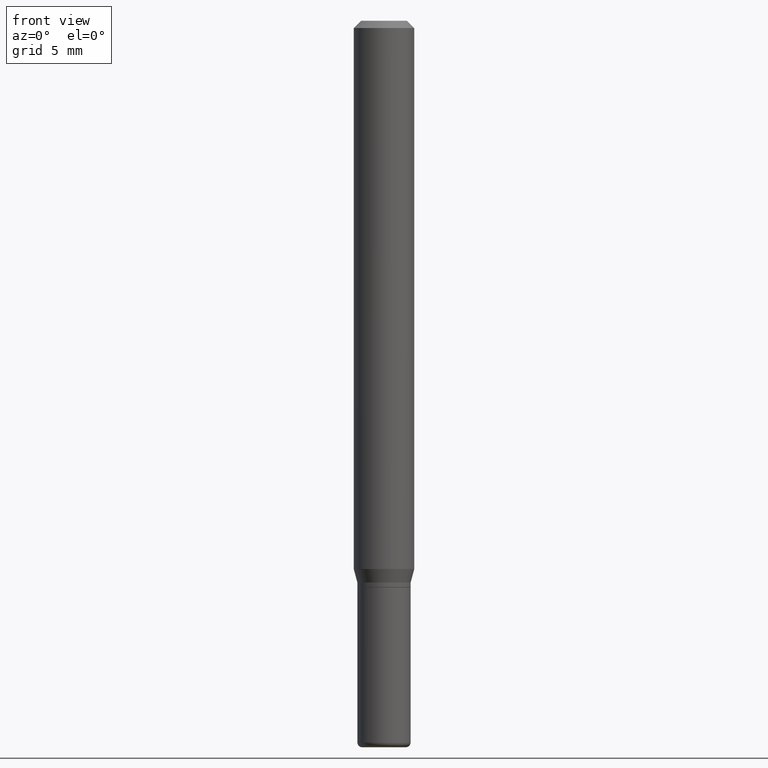
[diagram: clean part render]
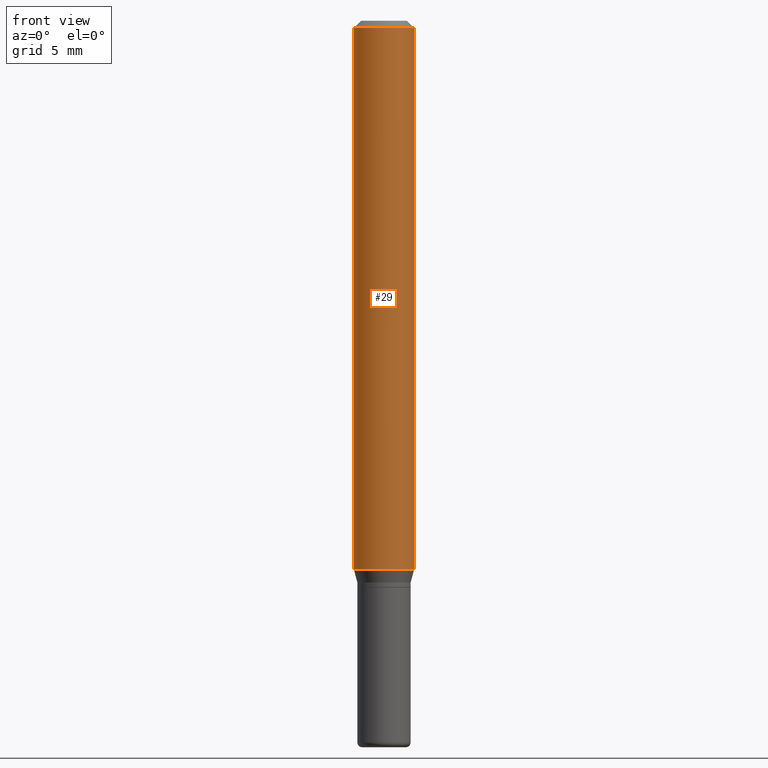
[diagram: same view with one face highlighted and labeled with its STEP entity id]
A machine part, front view. The second image highlights one B-rep face of the part: STEP entity #29.
In plain terms, the highlighted cylindrical surface (edge-blend (fillet) strip) has radius 1.5875 mm, axis along (-0, 0, 1).
Its self-contained STEP definition (entity closure, byte-faithful):
#2 = DIRECTION ( 'NONE',  ( -2.445468806185136877E-29, 3.491481338843145188E-15, 1.000000000000000000 ) ) ;
#26 = DIRECTION ( 'NONE',  ( -2.445468806185136597E-29, 3.491481338843145583E-15, 1.000000000000000000 ) ) ;
#29 = ADVANCED_FACE ( 'NONE', ( #182 ), #86, .T. ) ;
#36 = CARTESIAN_POINT ( 'NONE',  ( -0.06250000000000000000, -3.508301250081177341E-15, -1.132009618943233376 ) ) ;
#46 = EDGE_CURVE ( 'NONE', #402, #87, #483, .T. ) ;
#73 = EDGE_CURVE ( 'NONE', #396, #226, #132, .T. ) ;
#86 = CYLINDRICAL_SURFACE ( 'NONE', #110, 0.06250000000000000000 ) ;
#87 = VERTEX_POINT ( 'NONE', #142 ) ;
#110 = AXIS2_PLACEMENT_3D ( 'NONE', #397, #219, #393 ) ;
#125 = CARTESIAN_POINT ( 'NONE',  ( 0.06250000000000000000, -4.388825627286631627E-15, -1.132009618943233376 ) ) ;
#130 = ORIENTED_EDGE ( 'NONE', *, *, #46, .F. ) ;
#132 = LINE ( 'NONE', #213, #471 ) ;
#133 = EDGE_CURVE ( 'NONE', #87, #226, #238, .T. ) ;
#134 = EDGE_LOOP ( 'NONE', ( #130, #301, #216, #336 ) ) ;
#142 = CARTESIAN_POINT ( 'NONE',  ( -0.06250000000000000000, -1.558292130156879916E-15, -0.01499999999999970281 ) ) ;
#182 = FACE_OUTER_BOUND ( 'NONE', #134, .T. ) ;
#190 = CIRCLE ( 'NONE', #370, 0.06250000000000000000 ) ;
#191 = DIRECTION ( 'NONE',  ( 1.000000000000000000, -6.982962677686262766E-15, 0.000000000000000000 ) ) ;
#193 = DIRECTION ( 'NONE',  ( 1.000000000000000000, -6.982962677686266711E-15, 0.000000000000000000 ) ) ;
#213 = CARTESIAN_POINT ( 'NONE',  ( 0.06250000000000000000, -4.364351673553916694E-16, 3.047610484872459871E-30 ) ) ;
#216 = ORIENTED_EDGE ( 'NONE', *, *, #73, .T. ) ;
#219 = DIRECTION ( 'NONE',  ( -2.445468806185136597E-29, 3.491481338843145583E-15, 1.000000000000000000 ) ) ;
#226 = VERTEX_POINT ( 'NONE', #344 ) ;
#227 = EDGE_CURVE ( 'NONE', #402, #396, #190, .T. ) ;
#238 = CIRCLE ( 'NONE', #252, 0.06250000000000000000 ) ;
#250 = CARTESIAN_POINT ( 'NONE',  ( -0.06250000000000000000, 4.440892098500626162E-16, -3.074334431409316114E-30 ) ) ;
#252 = AXIS2_PLACEMENT_3D ( 'NONE', #300, #460, #193 ) ;
#300 = CARTESIAN_POINT ( 'NONE',  ( 3.668203209277632395E-31, -5.237222008264614861E-17, -0.01499999999999970281 ) ) ;
#301 = ORIENTED_EDGE ( 'NONE', *, *, #227, .T. ) ;
#336 = ORIENTED_EDGE ( 'NONE', *, *, #133, .F. ) ;
#344 = CARTESIAN_POINT ( 'NONE',  ( 0.06250000000000000000, -4.888073874380378612E-16, -0.01499999999999970281 ) ) ;
#346 = VECTOR ( 'NONE', #2, 39.37007874015748143 ) ;
#364 = DIRECTION ( 'NONE',  ( -2.445468806185136877E-29, 3.491481338843145188E-15, 1.000000000000000000 ) ) ;
#370 = AXIS2_PLACEMENT_3D ( 'NONE', #506, #26, #191 ) ;
#393 = DIRECTION ( 'NONE',  ( 1.000000000000000000, -6.982962677686266711E-15, 4.876176775795935793E-29 ) ) ;
#396 = VERTEX_POINT ( 'NONE', #125 ) ;
#397 = CARTESIAN_POINT ( 'NONE',  ( 0.000000000000000000, 0.000000000000000000, 0.000000000000000000 ) ) ;
#402 = VERTEX_POINT ( 'NONE', #36 ) ;
#460 = DIRECTION ( 'NONE',  ( -2.445468806185136597E-29, 3.491481338843145583E-15, 1.000000000000000000 ) ) ;
#471 = VECTOR ( 'NONE', #364, 39.37007874015748143 ) ;
#483 = LINE ( 'NONE', #250, #346 ) ;
#506 = CARTESIAN_POINT ( 'NONE',  ( 2.768294211427200085E-29, -3.952390459931239169E-15, -1.132009618943233376 ) ) ;